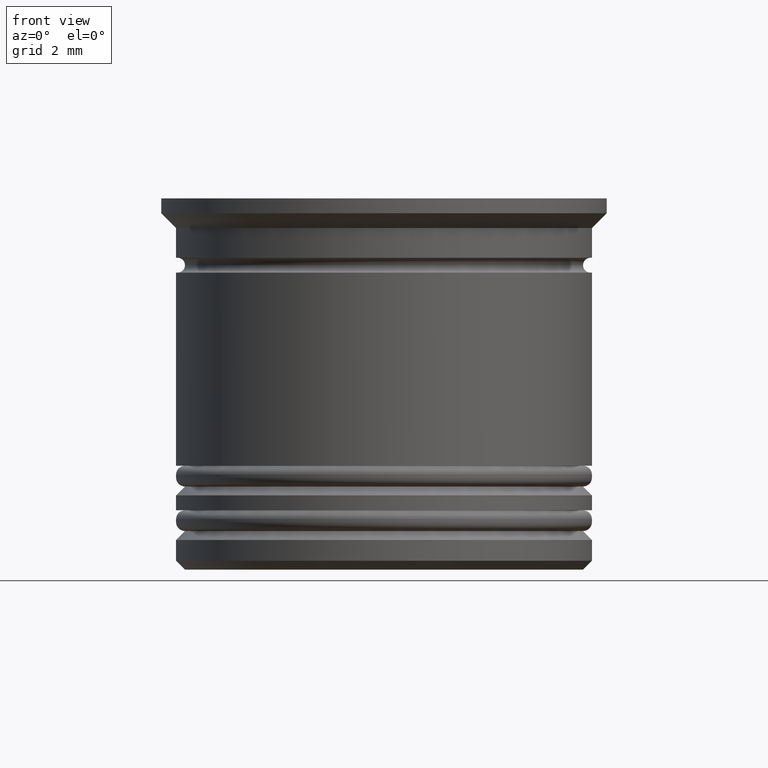
[diagram: clean part render]
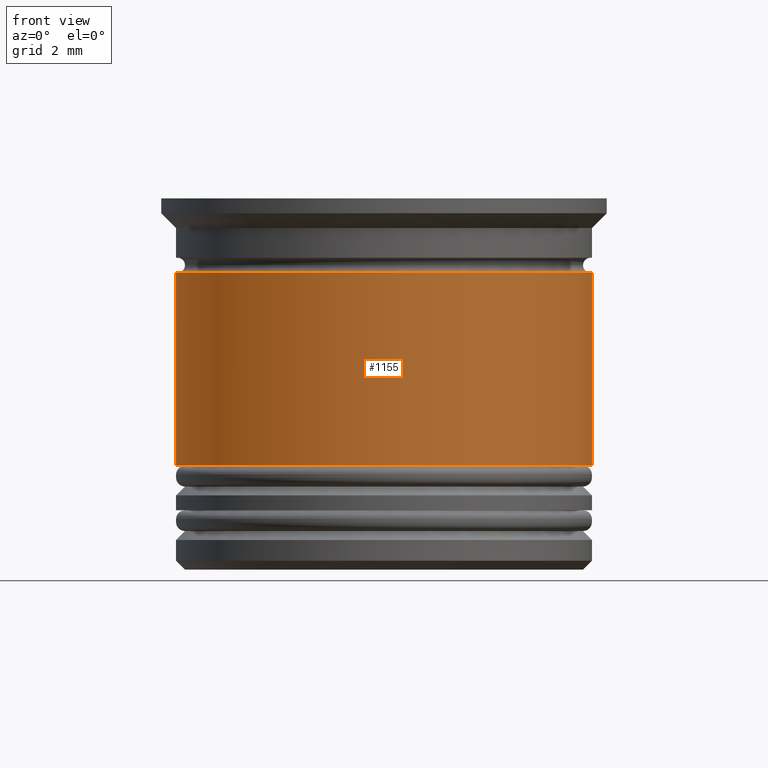
[diagram: same view with one face highlighted and labeled with its STEP entity id]
A machine part, front view. The second image highlights one B-rep face of the part: STEP entity #1155.
In plain terms, the highlighted cylindrical surface (partial cylindrical patch) has radius 7 mm, axis along (-0, -0, 1).
Its self-contained STEP definition (entity closure, byte-faithful):
#69 = ORIENTED_EDGE ( 'NONE', *, *, #1382, .T. ) ;
#95 = DIRECTION ( 'NONE',  ( -0.000000000000000000, -0.000000000000000000, 1.000000000000000000 ) ) ;
#139 = FACE_OUTER_BOUND ( 'NONE', #1839, .T. ) ;
#233 = CARTESIAN_POINT ( 'NONE',  ( 6.999999999999999112, 0.000000000000000000, -2.500000000000000000 ) ) ;
#319 = CARTESIAN_POINT ( 'NONE',  ( -6.999999999999999112, 8.572527594031473190E-16, -2.500000000000000000 ) ) ;
#466 = DIRECTION ( 'NONE',  ( -0.000000000000000000, -0.000000000000000000, 1.000000000000000000 ) ) ;
#790 = AXIS2_PLACEMENT_3D ( 'NONE', #1968, #95, #1181 ) ;
#809 = CARTESIAN_POINT ( 'NONE',  ( 7.000000000000000888, 0.000000000000000000, -9.000000000000001776 ) ) ;
#813 = VERTEX_POINT ( 'NONE', #319 ) ;
#943 = DIRECTION ( 'NONE',  ( -0.000000000000000000, -0.000000000000000000, 1.000000000000000000 ) ) ;
#960 = EDGE_CURVE ( 'NONE', #1614, #999, #1773, .T. ) ;
#986 = CARTESIAN_POINT ( 'NONE',  ( 7.000000000000000000, 0.000000000000000000, 0.000000000000000000 ) ) ;
#999 = VERTEX_POINT ( 'NONE', #233 ) ;
#1000 = DIRECTION ( 'NONE',  ( -0.000000000000000000, -0.000000000000000000, 1.000000000000000000 ) ) ;
#1089 = CARTESIAN_POINT ( 'NONE',  ( -7.000000000000001776, 8.572527594031474176E-16, -9.000000000000001776 ) ) ;
#1100 = LINE ( 'NONE', #1879, #1886 ) ;
#1132 = ORIENTED_EDGE ( 'NONE', *, *, #1981, .F. ) ;
#1155 = ADVANCED_FACE ( 'NONE', ( #139 ), #1347, .T. ) ;
#1181 = DIRECTION ( 'NONE',  ( 1.000000000000000000, 0.000000000000000000, 0.000000000000000000 ) ) ;
#1240 = AXIS2_PLACEMENT_3D ( 'NONE', #1667, #466, #1972 ) ;
#1262 = CARTESIAN_POINT ( 'NONE',  ( 0.000000000000000000, 0.000000000000000000, -2.500000000000000000 ) ) ;
#1291 = EDGE_CURVE ( 'NONE', #1562, #813, #1100, .T. ) ;
#1296 = CIRCLE ( 'NONE', #1881, 6.999999999999999112 ) ;
#1347 = CYLINDRICAL_SURFACE ( 'NONE', #1240, 7.000000000000000000 ) ;
#1382 = EDGE_CURVE ( 'NONE', #1562, #1614, #1657, .T. ) ;
#1412 = ORIENTED_EDGE ( 'NONE', *, *, #1291, .F. ) ;
#1562 = VERTEX_POINT ( 'NONE', #1089 ) ;
#1610 = DIRECTION ( 'NONE',  ( -0.000000000000000000, -0.000000000000000000, 1.000000000000000000 ) ) ;
#1614 = VERTEX_POINT ( 'NONE', #809 ) ;
#1657 = CIRCLE ( 'NONE', #790, 7.000000000000000888 ) ;
#1667 = CARTESIAN_POINT ( 'NONE',  ( 0.000000000000000000, 0.000000000000000000, 0.000000000000000000 ) ) ;
#1755 = VECTOR ( 'NONE', #1610, 1000.000000000000000 ) ;
#1768 = DIRECTION ( 'NONE',  ( 1.000000000000000000, 0.000000000000000000, 0.000000000000000000 ) ) ;
#1773 = LINE ( 'NONE', #986, #1755 ) ;
#1839 = EDGE_LOOP ( 'NONE', ( #1412, #69, #1992, #1132 ) ) ;
#1879 = CARTESIAN_POINT ( 'NONE',  ( -7.000000000000000000, 8.572527594031473190E-16, 0.000000000000000000 ) ) ;
#1881 = AXIS2_PLACEMENT_3D ( 'NONE', #1262, #1000, #1768 ) ;
#1886 = VECTOR ( 'NONE', #943, 1000.000000000000000 ) ;
#1968 = CARTESIAN_POINT ( 'NONE',  ( 0.000000000000000000, 0.000000000000000000, -9.000000000000001776 ) ) ;
#1972 = DIRECTION ( 'NONE',  ( 1.000000000000000000, 0.000000000000000000, 0.000000000000000000 ) ) ;
#1981 = EDGE_CURVE ( 'NONE', #813, #999, #1296, .T. ) ;
#1992 = ORIENTED_EDGE ( 'NONE', *, *, #960, .T. ) ;